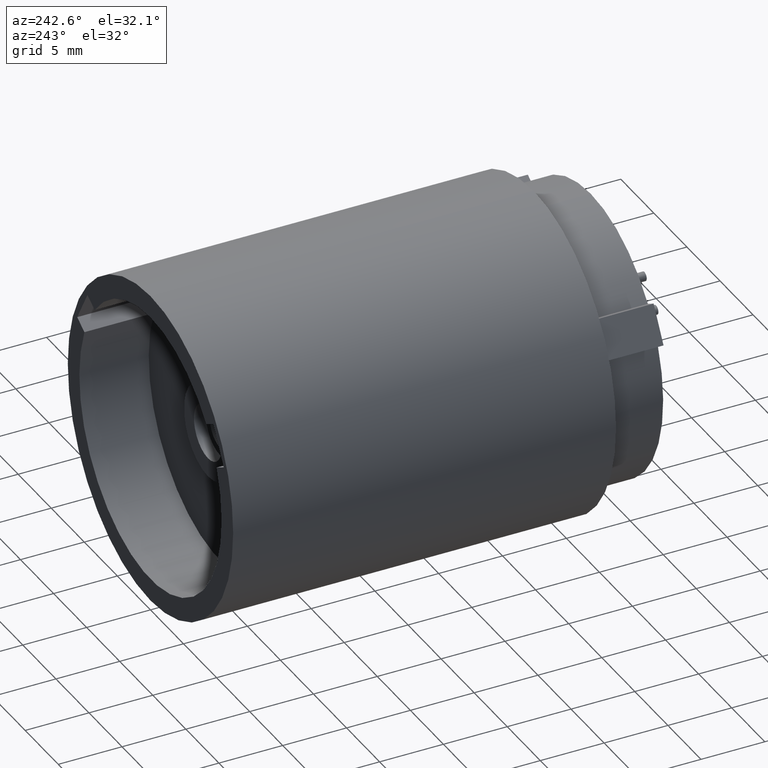
[diagram: clean part render]
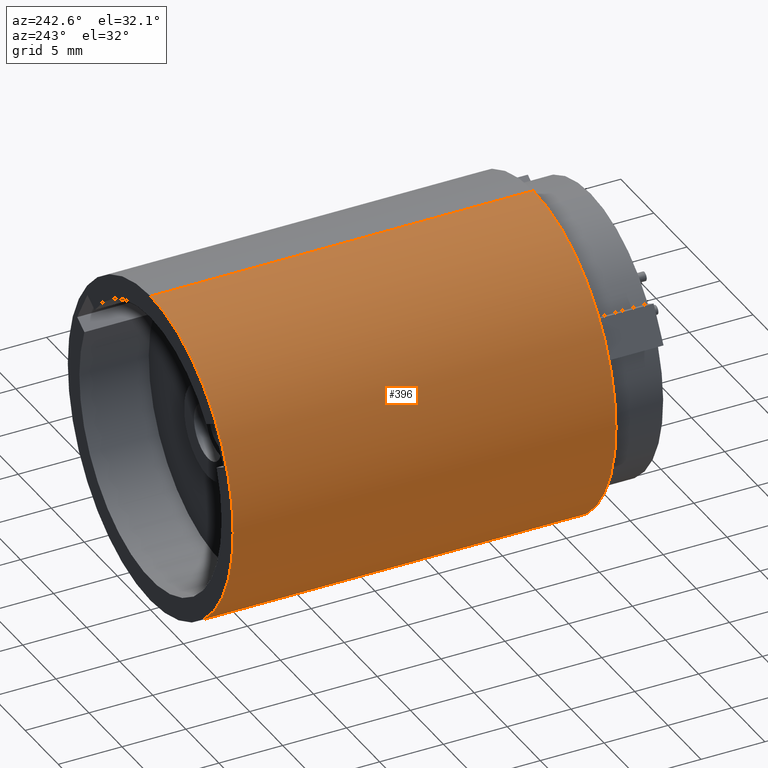
[diagram: same view with one face highlighted and labeled with its STEP entity id]
A machine part, auxiliary view. The second image highlights one B-rep face of the part: STEP entity #396.
In plain terms, the highlighted cylindrical surface (partial cylindrical patch) has radius 12.5 mm, axis along (-0, -1, -0).
Its self-contained STEP definition (entity closure, byte-faithful):
#3 = DIRECTION ( 'NONE',  ( -0.0000000000000000000, -1.000000000000000000, -0.0000000000000000000 ) ) ;
#30 = DIRECTION ( 'NONE',  ( 0.0000000000000000000, 0.0000000000000000000, -1.000000000000000000 ) ) ;
#43 = EDGE_CURVE ( 'NONE', #1107, #1995, #416, .T. ) ;
#127 = EDGE_LOOP ( 'NONE', ( #171, #539, #495, #1962 ) ) ;
#171 = ORIENTED_EDGE ( 'NONE', *, *, #43, .F. ) ;
#181 = VECTOR ( 'NONE', #1972, 1000.000000000000000 ) ;
#199 = CYLINDRICAL_SURFACE ( 'NONE', #962, 12.50000000000000000 ) ;
#309 = FACE_OUTER_BOUND ( 'NONE', #127, .T. ) ;
#323 = CIRCLE ( 'NONE', #1578, 12.50000000000000000 ) ;
#371 = CARTESIAN_POINT ( 'NONE',  ( 0.0000000000000000000, 0.0000000000000000000, -12.50000000000000000 ) ) ;
#396 = ADVANCED_FACE ( 'NONE', ( #309 ), #199, .T. ) ;
#416 = LINE ( 'NONE', #853, #181 ) ;
#478 = VERTEX_POINT ( 'NONE', #371 ) ;
#495 = ORIENTED_EDGE ( 'NONE', *, *, #1793, .T. ) ;
#539 = ORIENTED_EDGE ( 'NONE', *, *, #858, .F. ) ;
#635 = DIRECTION ( 'NONE',  ( 0.0000000000000000000, 1.000000000000000000, 0.0000000000000000000 ) ) ;
#655 = DIRECTION ( 'NONE',  ( -0.0000000000000000000, -1.000000000000000000, -0.0000000000000000000 ) ) ;
#666 = CARTESIAN_POINT ( 'NONE',  ( 0.0000000000000000000, 0.0000000000000000000, 0.0000000000000000000 ) ) ;
#749 = AXIS2_PLACEMENT_3D ( 'NONE', #666, #1749, #827 ) ;
#810 = CARTESIAN_POINT ( 'NONE',  ( 1.530808498934191500E-015, 30.00000000000000000, 12.50000000000000000 ) ) ;
#818 = CARTESIAN_POINT ( 'NONE',  ( 0.0000000000000000000, 30.00000000000000000, 0.0000000000000000000 ) ) ;
#827 = DIRECTION ( 'NONE',  ( 0.0000000000000000000, 0.0000000000000000000, 1.000000000000000000 ) ) ;
#853 = CARTESIAN_POINT ( 'NONE',  ( 1.530808498934191500E-015, 30.00000000000000000, 12.50000000000000000 ) ) ;
#858 = EDGE_CURVE ( 'NONE', #1921, #1107, #323, .T. ) ;
#962 = AXIS2_PLACEMENT_3D ( 'NONE', #818, #655, #30 ) ;
#1107 = VERTEX_POINT ( 'NONE', #810 ) ;
#1126 = VECTOR ( 'NONE', #3, 1000.000000000000000 ) ;
#1175 = LINE ( 'NONE', #1573, #1126 ) ;
#1444 = CARTESIAN_POINT ( 'NONE',  ( 0.0000000000000000000, 30.00000000000000000, -12.50000000000000000 ) ) ;
#1504 = CARTESIAN_POINT ( 'NONE',  ( 1.530808498934191500E-015, 0.0000000000000000000, 12.50000000000000000 ) ) ;
#1573 = CARTESIAN_POINT ( 'NONE',  ( 0.0000000000000000000, 30.00000000000000000, -12.50000000000000000 ) ) ;
#1578 = AXIS2_PLACEMENT_3D ( 'NONE', #1586, #635, #1725 ) ;
#1586 = CARTESIAN_POINT ( 'NONE',  ( 0.0000000000000000000, 30.00000000000000000, 0.0000000000000000000 ) ) ;
#1725 = DIRECTION ( 'NONE',  ( 0.0000000000000000000, 0.0000000000000000000, 1.000000000000000000 ) ) ;
#1749 = DIRECTION ( 'NONE',  ( 0.0000000000000000000, 1.000000000000000000, 0.0000000000000000000 ) ) ;
#1793 = EDGE_CURVE ( 'NONE', #1921, #478, #1175, .T. ) ;
#1802 = CIRCLE ( 'NONE', #749, 12.50000000000000000 ) ;
#1901 = EDGE_CURVE ( 'NONE', #478, #1995, #1802, .T. ) ;
#1921 = VERTEX_POINT ( 'NONE', #1444 ) ;
#1962 = ORIENTED_EDGE ( 'NONE', *, *, #1901, .T. ) ;
#1972 = DIRECTION ( 'NONE',  ( -0.0000000000000000000, -1.000000000000000000, -0.0000000000000000000 ) ) ;
#1995 = VERTEX_POINT ( 'NONE', #1504 ) ;